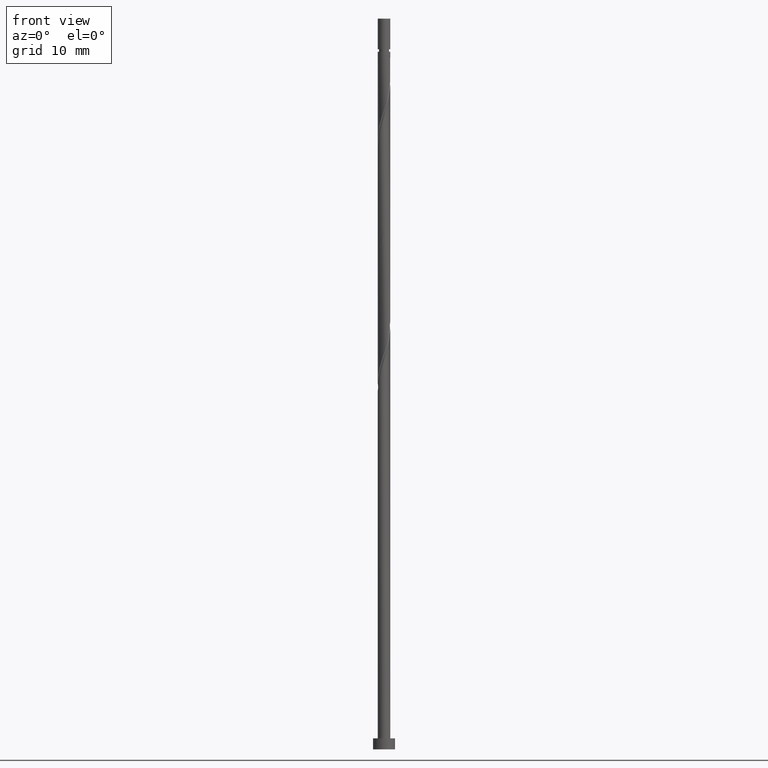
[diagram: clean part render]
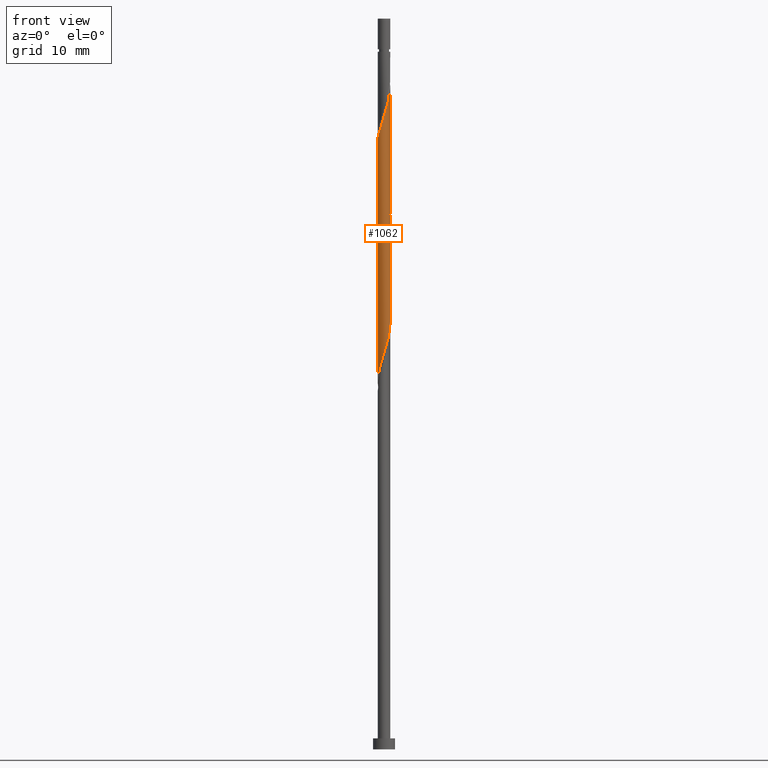
[diagram: same view with one face highlighted and labeled with its STEP entity id]
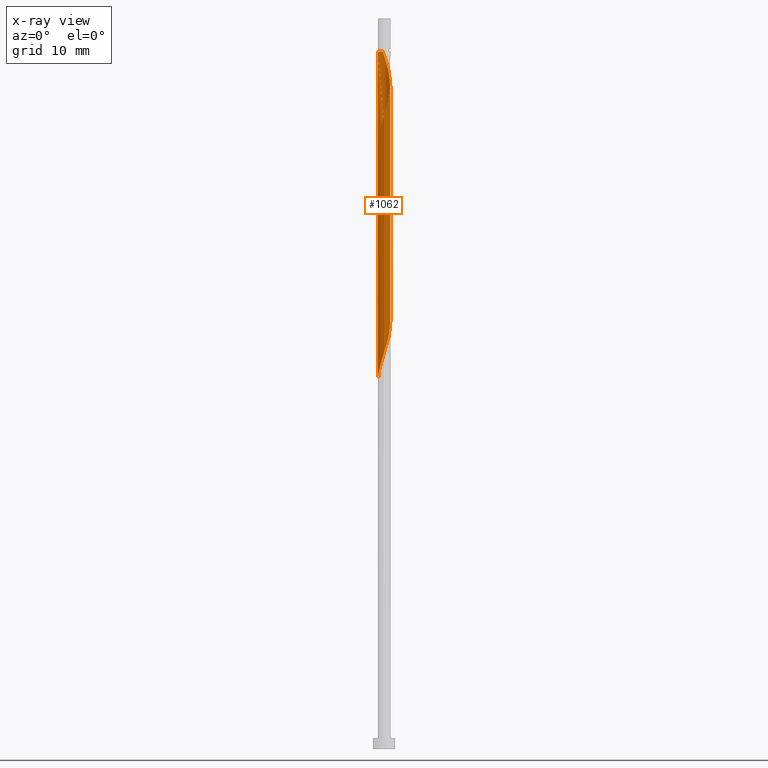
[diagram: x-ray of the same camera — body ghosted, the highlighted face saturated]
A machine part, front view. The second image highlights one B-rep face of the part: STEP entity #1062.
The next image is the same camera in x-ray: the body ghosted, the highlighted face saturated — about 0% of this face is hidden behind the body in this view.
In plain terms, the highlighted cylindrical surface (bore or boss wall) has radius 0.85 mm, axis along (-0, -0, -1).
Its self-contained STEP definition (entity closure, byte-faithful):
#12 =( BOUNDED_CURVE ( )  B_SPLINE_CURVE ( 2, ( #541, #411, #950, #1064, #19, #432, #1072, #118, #941, #1363, #1247, #1139, #626, #1152, #1352, #840, #859, #1057, #417, #193, #314, #222, #208, #424, #620, #1263, #1257, #127, #634, #1042, #112 ),
 .UNSPECIFIED., .F., .T. ) 
 B_SPLINE_CURVE_WITH_KNOTS ( ( 3, 2, 2, 2, 2, 2, 2, 2, 2, 2, 2, 2, 2, 2, 2, 3 ),
 ( 0.5545248053855292847, 0.5555555555555555802, 0.5694444444444444198, 0.5833333333333332593, 0.5972222222222222099, 0.6111111111111112715, 0.6250000000000001110, 0.6388888888888889506, 0.6527777777777779011, 0.6666666666666668517, 0.6805555555555556912, 0.6944444444444446418, 0.7083333333333334814, 0.7222222222222224319, 0.7361111111111113825, 0.7500000000000002220 ),
 .UNSPECIFIED. ) 
 CURVE ( )  GEOMETRIC_REPRESENTATION_ITEM ( )  RATIONAL_B_SPLINE_CURVE ( ( 0.9071930855141256966, 0.9080659294509730861, 0.9090909090909129464, 0.8952797754656475204, 0.9090909090909129464, 0.8952797754656475204, 0.9090909090909129464, 0.8952797754656475204, 0.9090909090909129464, 0.8952797754656475204, 0.9090909090909129464, 0.8952797754656475204, 0.9090909090909129464, 0.8952797754656475204, 0.9090909090909129464, 0.8952797754656475204, 0.9090909090909129464, 0.8952797754656475204, 0.9090909090909129464, 0.8952797754656475204, 0.9090909090909129464, 0.8952797754656475204, 0.9090909090909129464, 0.8952797754656475204, 0.9090909090909129464, 0.8952797754656475204, 0.9090909090909129464, 0.8952797754656475204, 0.9090909090909129464, 0.8952797754656472984, 0.9090909090909131685 ) ) 
 REPRESENTATION_ITEM ( '' )  );
#19 = CARTESIAN_POINT ( 'NONE',  ( -0.7909726398658112334, -0.3112270601726522257, 83.42705906512061631 ) ) ;
#50 = CARTESIAN_POINT ( 'NONE',  ( 0.1259557794782407147, -0.8406159299085588232, 54.72335536141690682 ) ) ;
#52 = VECTOR ( 'NONE', #1281, 1000.000000000000000 ) ;
#58 = CARTESIAN_POINT ( 'NONE',  ( 0.5375555463659555944, -0.6752758173902464467, 72.77891091697243553 ) ) ;
#65 = CARTESIAN_POINT ( 'NONE',  ( -0.02226748937797427483, -0.8628253322067382936, 54.26039239845393780 ) ) ;
#73 = CARTESIAN_POINT ( 'NONE',  ( 0.8458503677008268884, -0.1717572427621097964, 57.96409610215764019 ) ) ;
#80 = CARTESIAN_POINT ( 'NONE',  ( -0.7583624014087697596, -0.4121284546235436386, 51.48261462067615923 ) ) ;
#101 = CARTESIAN_POINT ( 'NONE',  ( 0.7583624014087697596, 0.4121284546235435275, 76.48261462067617344 ) ) ;
#108 = CARTESIAN_POINT ( 'NONE',  ( 0.8500000000000011990, 2.315539814768523447E-16, 75.16161765714637966 ) ) ;
#112 = CARTESIAN_POINT ( 'NONE',  ( -0.1691478643081251731, 0.8330000000000005178, 95.46409610215764019 ) ) ;
#114 = CARTESIAN_POINT ( 'NONE',  ( 0.8059730935065013702, 0.2700136525132809107, 76.01965165771318311 ) ) ;
#118 = CARTESIAN_POINT ( 'NONE',  ( -0.5375555463659554833, -0.6752758173902463357, 84.81594795400947362 ) ) ;
#127 = CARTESIAN_POINT ( 'NONE',  ( 0.2741790483344559992, 0.8184065276103787978, 94.07520721326875446 ) ) ;
#154 = ORIENTED_EDGE ( 'NONE', *, *, #1093, .F. ) ;
#155 = CARTESIAN_POINT ( 'NONE',  ( -0.02226748937797427483, -0.8628253322067382936, 70.92705906512058789 ) ) ;
#160 = EDGE_LOOP ( 'NONE', ( #154, #777, #1027, #254, #894, #886, #1020, #1326 ) ) ;
#161 = CARTESIAN_POINT ( 'NONE',  ( -0.8535837856042327587, -0.1278988504030180995, 67.22335536141689261 ) ) ;
#167 = CARTESIAN_POINT ( 'NONE',  ( 0.6368252291983756974, -0.5629863474867208284, 56.57520721326876867 ) ) ;
#172 = CARTESIAN_POINT ( 'NONE',  ( 0.1259557794782407147, -0.8406159299085588232, 71.39002202808356401 ) ) ;
#179 = CARTESIAN_POINT ( 'NONE',  ( -0.8059730935065014812, -0.2700136525132805776, 67.68631832437986873 ) ) ;
#186 =( BOUNDED_CURVE ( )  B_SPLINE_CURVE ( 2, ( #797, #1206, #807, #1099, #266, #691, #812, #58, #1312, #378, #172, #155, #925, #579, #255, #1319, #792, #1004, #179, #161, #1106, #586, #604, #386, #1201, #280, #1219, #1028, #1212, #599, #915, #392, #1113, #471, #902, #1010, #274, #895, #1021, #73, #697, #476, #167, #592, #1015, #703, #50, #65, #482, #490, #1327, #261, #1119, #80, #499, #821, #683 ),
 .UNSPECIFIED., .F., .T. ) 
 B_SPLINE_CURVE_WITH_KNOTS ( ( 3, 2, 2, 2, 2, 2, 2, 2, 2, 2, 2, 2, 2, 2, 2, 2, 2, 2, 2, 2, 2, 2, 2, 2, 2, 2, 2, 2, 3 ),
 ( 0.5545248053855291737, 0.5555555555555555802, 0.5694444444444444198, 0.5833333333333333703, 0.5972222222222222099, 0.6111111111111111605, 0.6250000000000000000, 0.6388888888888888395, 0.6527777777777777901, 0.6666666666666666297, 0.6805555555555555802, 0.6944444444444444198, 0.7083333333333333703, 0.7222222222222222099, 0.7361111111111111605, 0.7500000000000000000, 0.7638888888888888395, 0.7777777777777777901, 0.7916666666666666297, 0.8055555555555555802, 0.8194444444444444198, 0.8333333333333333703, 0.8472222222222222099, 0.8611111111111111605, 0.8750000000000000000, 0.8888888888888888395, 0.9027777777777777901, 0.9166666666666666297, 0.9295248053855290626 ),
 .UNSPECIFIED. ) 
 CURVE ( )  GEOMETRIC_REPRESENTATION_ITEM ( )  RATIONAL_B_SPLINE_CURVE ( ( 0.9071930855141261407, 0.9080659294509737522, 0.9090909090909138346, 0.8952797754656482976, 0.9090909090909138346, 0.8952797754656482976, 0.9090909090909138346, 0.8952797754656482976, 0.9090909090909138346, 0.8952797754656482976, 0.9090909090909138346, 0.8952797754656482976, 0.9090909090909138346, 0.8952797754656482976, 0.9090909090909138346, 0.8952797754656482976, 0.9090909090909138346, 0.8952797754656482976, 0.9090909090909138346, 0.8952797754656482976, 0.9090909090909138346, 0.8952797754656482976, 0.9090909090909138346, 0.8952797754656482976, 0.9090909090909138346, 0.8952797754656482976, 0.9090909090909138346, 0.8952797754656482976, 0.9090909090909138346, 0.8952797754656482976, 0.9090909090909138346, 0.8952797754656482976, 0.9090909090909138346, 0.8952797754656482976, 0.9090909090909138346, 0.8952797754656482976, 0.9090909090909138346, 0.8952797754656482976, 0.9090909090909138346, 0.8952797754656482976, 0.9090909090909138346, 0.8952797754656482976, 0.9090909090909138346, 0.8952797754656482976, 0.9090909090909138346, 0.8952797754656482976, 0.9090909090909138346, 0.8952797754656482976, 0.9090909090909138346, 0.8952797754656482976, 0.9090909090909138346, 0.8952797754656482976, 0.9090909090909138346, 0.8952797754656482976, 0.9090909090909138346, 0.8963047551055883799, 0.9071930855141261407 ) ) 
 REPRESENTATION_ITEM ( '' )  );
#190 = CARTESIAN_POINT ( 'NONE',  ( 0.1691478643081257283, 0.8330000000000011839, 78.79742943549099721 ) ) ;
#193 = CARTESIAN_POINT ( 'NONE',  ( 0.8535837856042325367, -0.1278988504030186824, 90.37150350956504496 ) ) ;
#194 = EDGE_CURVE ( 'NONE', #1014, #279, #12, .T. ) ;
#196 = CARTESIAN_POINT ( 'NONE',  ( -0.8458503677008268884, 0.1717572427621096853, 82.96409610215764019 ) ) ;
#208 = CARTESIAN_POINT ( 'NONE',  ( 0.7909726398658113444, 0.3112270601726519481, 91.76039239845393070 ) ) ;
#222 = CARTESIAN_POINT ( 'NONE',  ( 0.8458503677008266664, 0.1717572427621094355, 91.29742943549095457 ) ) ;
#229 = CARTESIAN_POINT ( 'NONE',  ( 0.8499999999999999778, 1.040949779275250140E-16, 100.0000000000000000 ) ) ;
#234 = DIRECTION ( 'NONE',  ( -0.000000000000000000, -0.000000000000000000, -1.000000000000000000 ) ) ;
#248 = DIRECTION ( 'NONE',  ( -1.000000000000000000, 0.000000000000000000, 0.000000000000000000 ) ) ;
#254 = ORIENTED_EDGE ( 'NONE', *, *, #567, .T. ) ;
#255 = CARTESIAN_POINT ( 'NONE',  ( -0.4438497793023243321, -0.7249119763207670930, 69.53817017623171637 ) ) ;
#261 = CARTESIAN_POINT ( 'NONE',  ( -0.5716713193663712778, -0.6466492848482698896, 52.40854054660209016 ) ) ;
#266 = CARTESIAN_POINT ( 'NONE',  ( 0.7909726398658115665, -0.3112270601726522257, 74.16779980586133547 ) ) ;
#274 = CARTESIAN_POINT ( 'NONE',  ( 0.8059730935065013702, 0.2700136525132809107, 59.35298499104653303 ) ) ;
#279 = VERTEX_POINT ( 'NONE', #654 ) ;
#280 = CARTESIAN_POINT ( 'NONE',  ( -0.5375555463659557054, 0.6752758173902464467, 64.44557758363912114 ) ) ;
#314 = CARTESIAN_POINT ( 'NONE',  ( 0.8497170766525296015, 0.02192919617954579639, 90.83446647252803530 ) ) ;
#341 = LINE ( 'NONE', #229, #736 ) ;
#346 = CARTESIAN_POINT ( 'NONE',  ( -0.8500000000000003109, 0.000000000000000000, 95.46409610215764019 ) ) ;
#377 = VERTEX_POINT ( 'NONE', #787 ) ;
#378 = CARTESIAN_POINT ( 'NONE',  ( 0.2741790483344553331, -0.8184065276103794639, 71.85298499104649750 ) ) ;
#386 = CARTESIAN_POINT ( 'NONE',  ( -0.7360949120307959115, 0.4506968775831947660, 65.37150350956504496 ) ) ;
#392 = CARTESIAN_POINT ( 'NONE',  ( 0.3160282392382769978, 0.8031746677932644074, 61.66779980586134968 ) ) ;
#397 = CARTESIAN_POINT ( 'NONE',  ( -0.1259557794782407703, 0.8406159299085588232, 79.72335536141690682 ) ) ;
#410 = CARTESIAN_POINT ( 'NONE',  ( -0.8499999999999999778, 0.000000000000000000, 100.0000000000000000 ) ) ;
#411 = CARTESIAN_POINT ( 'NONE',  ( -0.8500000000000010880, -0.01096642318221982895, 82.46725858776791540 ) ) ;
#417 = CARTESIAN_POINT ( 'NONE',  ( 0.8059730935065011481, -0.2700136525132811882, 89.90854054660209727 ) ) ;
#424 = CARTESIAN_POINT ( 'NONE',  ( 0.7360949120307959115, 0.4506968775831940999, 92.22335536141689261 ) ) ;
#432 = CARTESIAN_POINT ( 'NONE',  ( -0.7360949120307958005, -0.4506968775831945995, 83.89002202808356401 ) ) ;
#458 = DIRECTION ( 'NONE',  ( -0.000000000000000000, -0.000000000000000000, -1.000000000000000000 ) ) ;
#463 = VERTEX_POINT ( 'NONE', #465 ) ;
#465 = CARTESIAN_POINT ( 'NONE',  ( -0.8500000000000011990, 5.415375373248966134E-16, 83.49495099047972246 ) ) ;
#471 = CARTESIAN_POINT ( 'NONE',  ( 0.5716713193663716108, 0.6466492848482696676, 60.74187387993541876 ) ) ;
#476 = CARTESIAN_POINT ( 'NONE',  ( 0.7360949120307956894, -0.4506968775831953211, 57.03817017623171637 ) ) ;
#482 = CARTESIAN_POINT ( 'NONE',  ( -0.1691478643081256727, -0.8330000000000011839, 53.79742943549096879 ) ) ;
#490 = CARTESIAN_POINT ( 'NONE',  ( -0.3160282392382772754, -0.8031746677932644074, 53.33446647252801398 ) ) ;
#499 = CARTESIAN_POINT ( 'NONE',  ( -0.8059730935065014812, -0.2700136525132805776, 51.01965165771319732 ) ) ;
#507 = CARTESIAN_POINT ( 'NONE',  ( -0.8500000000000010880, -5.508743914167051570E-16, 50.16161765714639387 ) ) ;
#516 = VECTOR ( 'NONE', #838, 1000.000000000000000 ) ;
#541 = CARTESIAN_POINT ( 'NONE',  ( -0.8500000000000011990, -4.761795586822371041E-16, 82.43324121383555791 ) ) ;
#567 = EDGE_CURVE ( 'NONE', #1014, #1205, #1049, .T. ) ;
#579 = CARTESIAN_POINT ( 'NONE',  ( -0.3160282392382772754, -0.8031746677932644074, 70.00113313919466407 ) ) ;
#586 = CARTESIAN_POINT ( 'NONE',  ( -0.8458503677008268884, 0.1717572427621096853, 66.29742943549098300 ) ) ;
#592 = CARTESIAN_POINT ( 'NONE',  ( 0.5375555463659555944, -0.6752758173902464467, 56.11224425030579255 ) ) ;
#599 = CARTESIAN_POINT ( 'NONE',  ( 0.02226748937797395564, 0.8628253322067380715, 62.59372573178727350 ) ) ;
#604 = CARTESIAN_POINT ( 'NONE',  ( -0.7909726398658113444, 0.3112270601726522257, 65.83446647252800688 ) ) ;
#609 = CARTESIAN_POINT ( 'NONE',  ( 0.6650168603875709072, 0.5293888697359064865, 76.94557758363913536 ) ) ;
#620 = CARTESIAN_POINT ( 'NONE',  ( 0.6368252291983756974, 0.5629863474867206063, 92.68631832437986873 ) ) ;
#624 = CARTESIAN_POINT ( 'NONE',  ( 0.3160282392382769978, 0.8031746677932644074, 78.33446647252800688 ) ) ;
#626 = CARTESIAN_POINT ( 'NONE',  ( 0.1691478643081254229, -0.8330000000000012950, 87.13076276882434001 ) ) ;
#629 = CARTESIAN_POINT ( 'NONE',  ( -0.4058672973502056580, 0.7468411725003126778, 80.64928128734283064 ) ) ;
#634 = CARTESIAN_POINT ( 'NONE',  ( 0.1259557794782414086, 0.8406159299085583791, 94.53817017623174479 ) ) ;
#639 = CARTESIAN_POINT ( 'NONE',  ( 0.8499999999999999778, 1.040949779275250140E-16, 95.46409610215764019 ) ) ;
#654 = CARTESIAN_POINT ( 'NONE',  ( -0.1691478643081251731, 0.8330000000000002958, 95.46409610215764019 ) ) ;
#667 = CIRCLE ( 'NONE', #1127, 0.8500000000000003109 ) ;
#683 = CARTESIAN_POINT ( 'NONE',  ( -0.8500000000000010880, -5.508743914167051570E-16, 50.16161765714639387 ) ) ;
#691 = CARTESIAN_POINT ( 'NONE',  ( 0.7360949120307956894, -0.4506968775831953211, 73.70483684289840198 ) ) ;
#697 = CARTESIAN_POINT ( 'NONE',  ( 0.7909726398658115665, -0.3112270601726522257, 57.50113313919469249 ) ) ;
#699 =( BOUNDED_CURVE ( )  B_SPLINE_CURVE ( 2, ( #1038, #725, #1143, #196, #1252, #1224, #1135, #936, #629, #1053, #397, #1349, #190, #624, #734, #1046, #609, #101, #114, #1358, #108 ),
 .UNSPECIFIED., .F., .T. ) 
 B_SPLINE_CURVE_WITH_KNOTS ( ( 3, 2, 2, 2, 2, 2, 2, 2, 2, 2, 3 ),
 ( 0.4295248053855292292, 0.4305555555555555802, 0.4444444444444444198, 0.4583333333333333148, 0.4722222222222222099, 0.4861111111111111049, 0.5000000000000000000, 0.5138888888888888395, 0.5277777777777777901, 0.5416666666666666297, 0.5545248053855291737 ),
 .UNSPECIFIED. ) 
 CURVE ( )  GEOMETRIC_REPRESENTATION_ITEM ( )  RATIONAL_B_SPLINE_CURVE ( ( 0.9071930855141263628, 0.9080659294509738633, 0.9090909090909138346, 0.8952797754656482976, 0.9090909090909138346, 0.8952797754656482976, 0.9090909090909138346, 0.8952797754656482976, 0.9090909090909138346, 0.8952797754656482976, 0.9090909090909138346, 0.8952797754656482976, 0.9090909090909138346, 0.8952797754656482976, 0.9090909090909138346, 0.8952797754656482976, 0.9090909090909138346, 0.8952797754656482976, 0.9090909090909138346, 0.8963047551055882689, 0.9071930855141261407 ) ) 
 REPRESENTATION_ITEM ( '' )  );
#703 = CARTESIAN_POINT ( 'NONE',  ( 0.2741790483344553331, -0.8184065276103794639, 55.18631832437986162 ) ) ;
#725 = CARTESIAN_POINT ( 'NONE',  ( -0.8500000000000011990, 0.01096642318221933976, 83.46093361654736498 ) ) ;
#734 = CARTESIAN_POINT ( 'NONE',  ( 0.4438497793023247207, 0.7249119763207666489, 77.87150350956504496 ) ) ;
#736 = VECTOR ( 'NONE', #458, 1000.000000000000000 ) ;
#758 = CYLINDRICAL_SURFACE ( 'NONE', #911, 0.8499999999999999778 ) ;
#766 = CARTESIAN_POINT ( 'NONE',  ( 0.000000000000000000, 0.000000000000000000, 100.0000000000000000 ) ) ;
#777 = ORIENTED_EDGE ( 'NONE', *, *, #956, .T. ) ;
#786 = DIRECTION ( 'NONE',  ( -0.000000000000000000, -0.000000000000000000, -1.000000000000000000 ) ) ;
#787 = CARTESIAN_POINT ( 'NONE',  ( 0.8500000000000011990, 2.315539814768523447E-16, 75.16161765714637966 ) ) ;
#792 = CARTESIAN_POINT ( 'NONE',  ( -0.6650168603875706852, -0.5293888697359065976, 68.61224425030580676 ) ) ;
#796 = VERTEX_POINT ( 'NONE', #639 ) ;
#797 = CARTESIAN_POINT ( 'NONE',  ( 0.8500000000000011990, 2.315539814768523447E-16, 75.16161765714637966 ) ) ;
#807 = CARTESIAN_POINT ( 'NONE',  ( 0.8497170766525297125, -0.02192919617954607048, 75.09372573178725929 ) ) ;
#812 = CARTESIAN_POINT ( 'NONE',  ( 0.6368252291983756974, -0.5629863474867208284, 73.24187387993542586 ) ) ;
#820 = VERTEX_POINT ( 'NONE', #346 ) ;
#821 = CARTESIAN_POINT ( 'NONE',  ( -0.8500000000000011990, -0.1385962160473884486, 50.59153716951201574 ) ) ;
#838 = DIRECTION ( 'NONE',  ( -0.000000000000000000, -0.000000000000000000, -1.000000000000000000 ) ) ;
#840 = CARTESIAN_POINT ( 'NONE',  ( 0.5716713193663708337, -0.6466492848482696676, 88.51965165771316890 ) ) ;
#859 = CARTESIAN_POINT ( 'NONE',  ( 0.6650168603875703521, -0.5293888697359065976, 88.98261462067618766 ) ) ;
#865 = CARTESIAN_POINT ( 'NONE',  ( -0.8500000000000011990, -4.761795586822371041E-16, 82.43324121383555791 ) ) ;
#886 = ORIENTED_EDGE ( 'NONE', *, *, #1078, .F. ) ;
#894 = ORIENTED_EDGE ( 'NONE', *, *, #1157, .F. ) ;
#895 = CARTESIAN_POINT ( 'NONE',  ( 0.8535837856042327587, 0.1278988504030175999, 58.89002202808354980 ) ) ;
#902 = CARTESIAN_POINT ( 'NONE',  ( 0.6650168603875709072, 0.5293888697359064865, 60.27891091697244974 ) ) ;
#911 = AXIS2_PLACEMENT_3D ( 'NONE', #766, #786, #1170 ) ;
#915 = CARTESIAN_POINT ( 'NONE',  ( 0.1691478643081257283, 0.8330000000000011839, 62.13076276882431159 ) ) ;
#925 = CARTESIAN_POINT ( 'NONE',  ( -0.1691478643081256727, -0.8330000000000011839, 70.46409610215766861 ) ) ;
#936 = CARTESIAN_POINT ( 'NONE',  ( -0.5375555463659557054, 0.6752758173902464467, 81.11224425030580676 ) ) ;
#941 = CARTESIAN_POINT ( 'NONE',  ( -0.4058672973502057135, -0.7468411725003125667, 85.27891091697244974 ) ) ;
#950 = CARTESIAN_POINT ( 'NONE',  ( -0.8497170766525297125, -0.02192919617954571312, 82.50113313919469249 ) ) ;
#956 = EDGE_CURVE ( 'NONE', #820, #279, #667, .T. ) ;
#984 = FACE_OUTER_BOUND ( 'NONE', #160, .T. ) ;
#993 = CARTESIAN_POINT ( 'NONE',  ( 0.000000000000000000, 0.000000000000000000, 95.46409610215764019 ) ) ;
#1004 = CARTESIAN_POINT ( 'NONE',  ( -0.7583624014087697596, -0.4121284546235436386, 68.14928128734280222 ) ) ;
#1010 = CARTESIAN_POINT ( 'NONE',  ( 0.7583624014087697596, 0.4121284546235435275, 59.81594795400948783 ) ) ;
#1014 = VERTEX_POINT ( 'NONE', #865 ) ;
#1015 = CARTESIAN_POINT ( 'NONE',  ( 0.4058672973502056580, -0.7468411725003126778, 55.64928128734281643 ) ) ;
#1020 = ORIENTED_EDGE ( 'NONE', *, *, #1078, .T. ) ;
#1021 = CARTESIAN_POINT ( 'NONE',  ( 0.8497170766525297125, -0.02192919617954607048, 58.42705906512060920 ) ) ;
#1027 = ORIENTED_EDGE ( 'NONE', *, *, #194, .F. ) ;
#1028 = CARTESIAN_POINT ( 'NONE',  ( -0.2741790483344554996, 0.8184065276103794639, 63.51965165771321153 ) ) ;
#1038 = CARTESIAN_POINT ( 'NONE',  ( -0.8500000000000011990, 5.415375373248966134E-16, 83.49495099047972246 ) ) ;
#1042 = CARTESIAN_POINT ( 'NONE',  ( -0.02226748937797632180, 0.8628253322067385156, 95.00113313919470670 ) ) ;
#1046 = CARTESIAN_POINT ( 'NONE',  ( 0.5716713193663716108, 0.6466492848482696676, 77.40854054660209727 ) ) ;
#1049 = LINE ( 'NONE', #410, #516 ) ;
#1053 = CARTESIAN_POINT ( 'NONE',  ( -0.2741790483344554996, 0.8184065276103794639, 80.18631832437986873 ) ) ;
#1057 = CARTESIAN_POINT ( 'NONE',  ( 0.7583624014087694265, -0.4121284546235436941, 89.44557758363912114 ) ) ;
#1062 = ADVANCED_FACE ( 'NONE', ( #984 ), #758, .T. ) ;
#1064 = CARTESIAN_POINT ( 'NONE',  ( -0.8458503677008266664, -0.1717572427621095188, 82.96409610215762598 ) ) ;
#1072 = CARTESIAN_POINT ( 'NONE',  ( -0.6368252291983758084, -0.5629863474867202733, 84.35298499104654013 ) ) ;
#1076 = LINE ( 'NONE', #1175, #52 ) ;
#1078 = EDGE_CURVE ( 'NONE', #796, #377, #341, .T. ) ;
#1093 = EDGE_CURVE ( 'NONE', #820, #463, #1076, .T. ) ;
#1099 = CARTESIAN_POINT ( 'NONE',  ( 0.8458503677008268884, -0.1717572427621097964, 74.63076276882431159 ) ) ;
#1106 = CARTESIAN_POINT ( 'NONE',  ( -0.8497170766525294905, 0.02192919617954577904, 66.76039239845393070 ) ) ;
#1113 = CARTESIAN_POINT ( 'NONE',  ( 0.4438497793023247207, 0.7249119763207666489, 61.20483684289838777 ) ) ;
#1119 = CARTESIAN_POINT ( 'NONE',  ( -0.6650168603875706852, -0.5293888697359065976, 51.94557758363912114 ) ) ;
#1127 = AXIS2_PLACEMENT_3D ( 'NONE', #993, #234, #248 ) ;
#1135 = CARTESIAN_POINT ( 'NONE',  ( -0.6368252291983756974, 0.5629863474867208284, 81.57520721326874025 ) ) ;
#1139 = CARTESIAN_POINT ( 'NONE',  ( 0.02226748937797368502, -0.8628253322067379605, 86.66779980586133547 ) ) ;
#1143 = CARTESIAN_POINT ( 'NONE',  ( -0.8497170766525294905, 0.02192919617954577904, 83.42705906512060210 ) ) ;
#1152 = CARTESIAN_POINT ( 'NONE',  ( 0.3160282392382767758, -0.8031746677932642964, 87.59372573178727350 ) ) ;
#1157 = EDGE_CURVE ( 'NONE', #377, #1205, #186, .T. ) ;
#1170 = DIRECTION ( 'NONE',  ( -1.000000000000000000, 0.000000000000000000, 0.000000000000000000 ) ) ;
#1175 = CARTESIAN_POINT ( 'NONE',  ( -0.8499999999999999778, 0.000000000000000000, 100.0000000000000000 ) ) ;
#1201 = CARTESIAN_POINT ( 'NONE',  ( -0.6368252291983756974, 0.5629863474867208284, 64.90854054660208305 ) ) ;
#1205 = VERTEX_POINT ( 'NONE', #507 ) ;
#1206 = CARTESIAN_POINT ( 'NONE',  ( 0.8500000000000011990, -0.01096642318221910557, 75.12760028321402217 ) ) ;
#1212 = CARTESIAN_POINT ( 'NONE',  ( -0.1259557794782407703, 0.8406159299085588232, 63.05668869475022831 ) ) ;
#1219 = CARTESIAN_POINT ( 'NONE',  ( -0.4058672973502056580, 0.7468411725003126778, 63.98261462067616634 ) ) ;
#1224 = CARTESIAN_POINT ( 'NONE',  ( -0.7360949120307959115, 0.4506968775831947660, 82.03817017623173058 ) ) ;
#1247 = CARTESIAN_POINT ( 'NONE',  ( -0.1259557794782409368, -0.8406159299085583791, 86.20483684289841619 ) ) ;
#1252 = CARTESIAN_POINT ( 'NONE',  ( -0.7909726398658113444, 0.3112270601726522257, 82.50113313919467828 ) ) ;
#1257 = CARTESIAN_POINT ( 'NONE',  ( 0.4058672973502058801, 0.7468411725003124557, 93.61224425030580676 ) ) ;
#1263 = CARTESIAN_POINT ( 'NONE',  ( 0.5375555463659555944, 0.6752758173902461136, 93.14928128734281643 ) ) ;
#1281 = DIRECTION ( 'NONE',  ( -0.000000000000000000, -0.000000000000000000, -1.000000000000000000 ) ) ;
#1312 = CARTESIAN_POINT ( 'NONE',  ( 0.4058672973502056580, -0.7468411725003126778, 72.31594795400948783 ) ) ;
#1319 = CARTESIAN_POINT ( 'NONE',  ( -0.5716713193663712778, -0.6466492848482698896, 69.07520721326875446 ) ) ;
#1326 = ORIENTED_EDGE ( 'NONE', *, *, #1340, .F. ) ;
#1327 = CARTESIAN_POINT ( 'NONE',  ( -0.4438497793023243321, -0.7249119763207670930, 52.87150350956506628 ) ) ;
#1340 = EDGE_CURVE ( 'NONE', #463, #377, #699, .T. ) ;
#1349 = CARTESIAN_POINT ( 'NONE',  ( 0.02226748937797395564, 0.8628253322067380715, 79.26039239845394491 ) ) ;
#1352 = CARTESIAN_POINT ( 'NONE',  ( 0.4438497793023241100, -0.7249119763207672040, 88.05668869475027805 ) ) ;
#1358 = CARTESIAN_POINT ( 'NONE',  ( 0.8500000000000016431, 0.1385962160473868943, 75.59153716951202284 ) ) ;
#1363 = CARTESIAN_POINT ( 'NONE',  ( -0.2741790483344554441, -0.8184065276103789088, 85.74187387993541165 ) ) ;